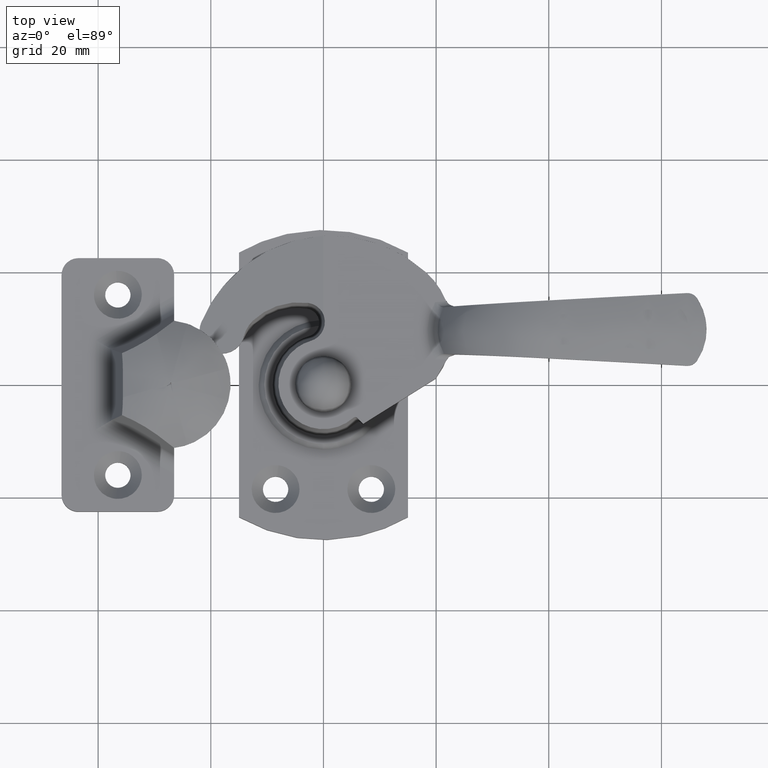
[diagram: clean part render]
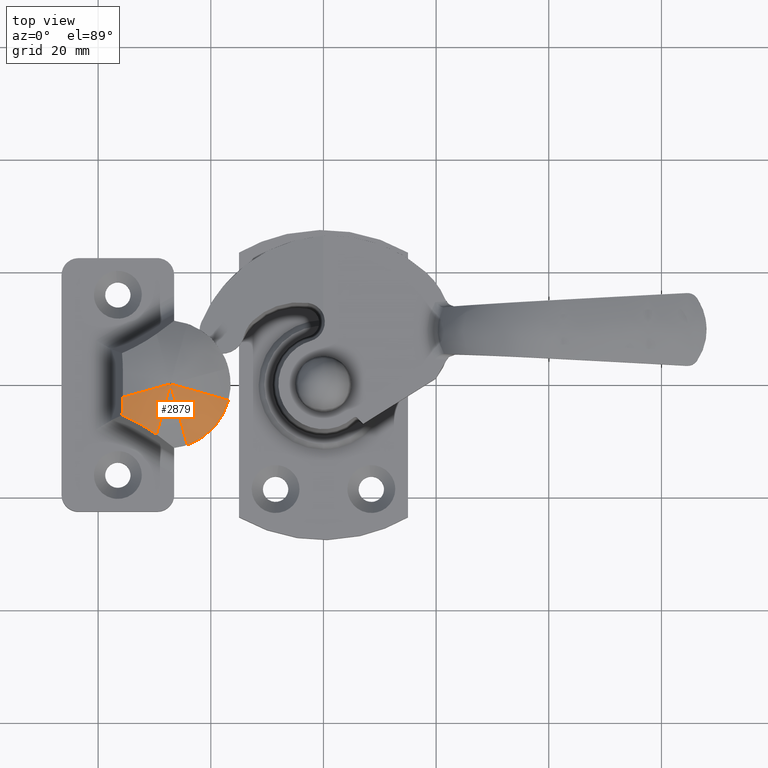
[diagram: same view with one face highlighted and labeled with its STEP entity id]
A machine part, top view. The second image highlights one B-rep face of the part: STEP entity #2879.
In plain terms, the highlighted face is a freeform B-spline surface patch.
Its self-contained STEP definition (entity closure, byte-faithful):
#2393=CARTESIAN_POINT('',(-16.865678131114400,-2.861039895896480,11.261993442719840));
#2394=VERTEX_POINT('',#2393);
#2412=CARTESIAN_POINT('',(-24.177245148327948,-10.757284593454459,10.931948783105540));
#2413=VERTEX_POINT('',#2412);
#2414=CARTESIAN_POINT('',(-16.865678131114400,-2.861039895896480,11.261993442719840));
#2415=CARTESIAN_POINT('',(-16.983304585026659,-3.313673338012677,11.344063364204009));
#2416=CARTESIAN_POINT('',(-17.127923176603950,-3.755949839157143,11.415053971642729));
#2417=CARTESIAN_POINT('',(-17.470181074875189,-4.620243388056475,11.534596392387080));
#2418=CARTESIAN_POINT('',(-17.667818673293549,-5.042259855563511,11.583158763522469));
#2419=CARTESIAN_POINT('',(-18.005158622210999,-5.659703165067700,11.638377848142939));
#2420=CARTESIAN_POINT('',(-18.124438315107000,-5.862913278894743,11.653839655628291));
#2421=CARTESIAN_POINT('',(-18.313937464525260,-6.163700885495889,11.672435723474200));
#2422=CARTESIAN_POINT('',(-18.378692407391359,-6.263002050292717,11.677847673356810));
#2423=CARTESIAN_POINT('',(-18.510801978881130,-6.458860684491440,11.687060912507720));
#2424=CARTESIAN_POINT('',(-18.578238655109139,-6.555549162315566,11.690870468515440));
#2425=CARTESIAN_POINT('',(-18.922252280941901,-7.032858092294899,11.705962417226880));
#2426=CARTESIAN_POINT('',(-19.219241508093670,-7.395148690099553,11.705425706607199));
#2427=CARTESIAN_POINT('',(-19.856042114928709,-8.081265642669104,11.679106791051710));
#2428=CARTESIAN_POINT('',(-20.195851542366398,-8.405093836288524,11.653329319455230));
#2429=CARTESIAN_POINT('',(-20.648161520774369,-8.785125949970235,11.604511735195731));
#2430=CARTESIAN_POINT('',(-20.739975216304330,-8.859852609939136,11.593914980365071));
#2431=CARTESIAN_POINT('',(-20.924955578483932,-9.005692431042682,11.571213610549600));
#2432=CARTESIAN_POINT('',(-21.018294114345359,-9.076952472959947,11.559091152045770));
#2433=CARTESIAN_POINT('',(-21.300810247663652,-9.285834981114942,11.520431917131649));
#2434=CARTESIAN_POINT('',(-21.492485922409610,-9.418564651897611,11.491605613234899));
#2435=CARTESIAN_POINT('',(-22.077245447655041,-9.797648625366321,11.396065339295379));
#2436=CARTESIAN_POINT('',(-22.480027374858121,-10.024965897628960,11.320323490414101));
#2437=CARTESIAN_POINT('',(-23.103231411708698,-10.328402603739930,11.188393704987160));
#2438=CARTESIAN_POINT('',(-23.314146710960070,-10.423274328456669,11.141355755081570));
#2439=CARTESIAN_POINT('',(-23.635321481800570,-10.556087032101960,11.066100352625581));
#2440=CARTESIAN_POINT('',(-23.743143796122752,-10.598754354630220,11.040238724301821));
#2441=CARTESIAN_POINT('',(-23.959500701526661,-10.680578140359360,10.987152981929279));
#2442=CARTESIAN_POINT('',(-24.068143183349541,-10.719780139081349,10.959903870999980));
#2443=CARTESIAN_POINT('',(-24.177245148327948,-10.757284593454459,10.931948783105540));
#2444=B_SPLINE_CURVE_WITH_KNOTS('',3,(#2414,#2415,#2416,#2417,#2418,#2419,#2420,#2421,#2422,#2423,#2424,#2425,#2426,#2427,#2428,#2429,#2430,#2431,#2432,#2433,#2434,#2435,#2436,#2437,#2438,#2439,#2440,#2441,#2442,#2443),.UNSPECIFIED.,.F.,.U.,(4,2,2,2,2,2,2,2,2,2,2,2,2,2,4),(0.0,0.125000000000002,0.250000000000003,0.312500000000004,0.343750000000004,0.375000000000004,0.500000000000004,0.625000000000004,0.656250000000004,0.687500000000003,0.750000000000002,0.875000000000001,0.937500000000000,0.968750000000000,1.0),.UNSPECIFIED.);
#2445=EDGE_CURVE('',#2394,#2413,#2444,.T.);
#2536=CARTESIAN_POINT('',(-30.024185993516113,-10.729596677095262,10.952783937540014));
#2537=CARTESIAN_POINT('',(-29.797835679884638,-9.877531489586170,11.585428212022922));
#2538=CARTESIAN_POINT('',(-29.558934069814182,-8.980222557463964,12.133148983882521));
#2539=CARTESIAN_POINT('',(-29.075138572153996,-7.163640981834149,13.044505956993852));
#2540=CARTESIAN_POINT('',(-28.828720405568596,-6.239085911053775,13.412794807364511));
#2541=CARTESIAN_POINT('',(-28.328239821971657,-4.361354180605857,13.991320772080615));
#2542=CARTESIAN_POINT('',(-28.074073887974802,-3.408173681235928,14.201347911976043));
#2543=CARTESIAN_POINT('',(-27.687379392580365,-1.958097247006881,14.399848834178274));
#2544=CARTESIAN_POINT('',(-27.557594523406962,-1.471378462731506,14.446392776159160));
#2545=CARTESIAN_POINT('',(-27.362855851297340,-0.741582587070588,14.486379463952400));
#2546=CARTESIAN_POINT('',(-27.298037098094326,-0.497688800743477,14.494759621825203));
#2547=CARTESIAN_POINT('',(-27.216410072354364,-0.194977497555821,14.499056877548126));
#2548=CARTESIAN_POINT('',(-27.200415605136957,-0.132970739615949,14.499608264158400));
#2549=CARTESIAN_POINT('',(-27.178739189822370,-0.062462266169482,14.499908155454131));
#2550=CARTESIAN_POINT('',(-27.174359805654625,-0.047079532301018,14.499950686282759));
#2551=CARTESIAN_POINT('',(-27.163504152199913,-0.033660549255883,14.499980779354285));
#2552=CARTESIAN_POINT('',(-27.157817308370767,-0.046186177491745,14.499956445506974));
#2553=CARTESIAN_POINT('',(-27.144220646083770,-0.085192704062019,14.499828191957379));
#2554=CARTESIAN_POINT('',(-27.136168160495671,-0.115654202293428,14.499663989848987));
#2555=CARTESIAN_POINT('',(-27.095125326163096,-0.264200667932157,14.498464418016402));
#2556=CARTESIAN_POINT('',(-27.062993166108615,-0.385710458427682,14.496284002075415));
#2557=CARTESIAN_POINT('',(-26.772274213621884,-1.472904191268938,14.465681320371671));
#2558=CARTESIAN_POINT('',(-26.514869255348454,-2.439697496714986,14.360403623624149));
#2559=CARTESIAN_POINT('',(-26.005811590751591,-4.349035596271551,13.993793414858555));
#2560=CARTESIAN_POINT('',(-25.753721267656939,-5.294528437970536,13.732672474026534));
#2561=CARTESIAN_POINT('',(-25.255318699915200,-7.164845935684999,13.042770027172955));
#2562=CARTESIAN_POINT('',(-25.012958661543127,-8.074442410607244,12.619657997543261));
#2563=CARTESIAN_POINT('',(-24.543553438084476,-9.837714066996666,11.608297356600007));
#2564=CARTESIAN_POINT('',(-24.316292755283307,-10.691757987905854,11.020280471670340));
#2565=CARTESIAN_POINT('',(-24.098302887228304,-11.513049753720404,10.336817359757163));
#2566=CARTESIAN_POINT('',(-30.053985499563563,-10.710253850202484,10.967005970455736));
#2567=CARTESIAN_POINT('',(-29.824709683416540,-9.858388380114043,11.597723099316209));
#2568=CARTESIAN_POINT('',(-29.583032828747264,-8.961846099956343,12.143472363982143));
#2569=CARTESIAN_POINT('',(-29.093882455526693,-7.147638910370492,13.051241388075708));
#2570=CARTESIAN_POINT('',(-28.844902416523656,-6.224694255054417,13.417924150804110));
#2571=CARTESIAN_POINT('',(-28.339364059816983,-4.350761305729182,13.993808884351363));
#2572=CARTESIAN_POINT('',(-28.082731342351906,-3.399760686724462,14.202821187499962));
#2573=CARTESIAN_POINT('',(-27.692332060387525,-1.953188808430697,14.400348185828523));
#2574=CARTESIAN_POINT('',(-27.561312782866839,-1.467677425522977,14.446660545979718));
#2575=CARTESIAN_POINT('',(-27.364726472231450,-0.739711533548965,14.486447689098714));
#2576=CARTESIAN_POINT('',(-27.299293666443369,-0.496432421999992,14.494785909137814));
#2577=CARTESIAN_POINT('',(-27.216893514596737,-0.194485154526563,14.499061654625171));
#2578=CARTESIAN_POINT('',(-27.200747563525557,-0.132634959316589,14.499610280552780));
#2579=CARTESIAN_POINT('',(-27.178865854206705,-0.062304532097870,14.499908670396801));
#2580=CARTESIAN_POINT('',(-27.174444993685157,-0.046960643439871,14.499950988192095));
#2581=CARTESIAN_POINT('',(-27.163486528438305,-0.033575546829087,14.499980930745451));
#2582=CARTESIAN_POINT('',(-27.157745825750894,-0.046069544480406,14.499956718684373));
#2583=CARTESIAN_POINT('',(-27.144020391726993,-0.084977570774255,14.499829107201730));
#2584=CARTESIAN_POINT('',(-27.135891641756992,-0.115362149343743,14.499665727283363));
#2585=CARTESIAN_POINT('',(-27.094460089825887,-0.263533554166989,14.498472161101015));
#2586=CARTESIAN_POINT('',(-27.062023584760528,-0.384736670571308,14.496302660645650));
#2587=CARTESIAN_POINT('',(-26.768551632785318,-1.469191596799880,14.465852982949967));
#2588=CARTESIAN_POINT('',(-26.508710943459587,-2.433582801624087,14.361101966155797));
#2589=CARTESIAN_POINT('',(-25.994704019925130,-4.338485190947859,13.996262185739054));
#2590=CARTESIAN_POINT('',(-25.740122367331910,-5.281952114054143,13.736370358129538));
#2591=CARTESIAN_POINT('',(-25.236552147528293,-7.148860593158601,13.049496211272082));
#2592=CARTESIAN_POINT('',(-24.991587542084531,-8.057108039402953,12.628135303321077));
#2593=CARTESIAN_POINT('',(-24.516780755764994,-9.818622896323811,11.620480730433584));
#2594=CARTESIAN_POINT('',(-24.286759645369230,-10.672246466802500,11.034398385890585));
#2595=CARTESIAN_POINT('',(-24.065802638957447,-11.493691228988453,10.352767557732362));
#2596=CARTESIAN_POINT('',(-30.105509902927718,-10.676809416142422,10.991596370022814));
#2597=CARTESIAN_POINT('',(-29.871162026220649,-9.825299068263663,11.618975099175753));
#2598=CARTESIAN_POINT('',(-29.624676983260670,-8.930090438265163,12.161311806966058));
#2599=CARTESIAN_POINT('',(-29.126258403214994,-7.119998841431166,13.062875368080183));
#2600=CARTESIAN_POINT('',(-28.872848049320453,-6.199840487805586,13.426782305000769));
#2601=CARTESIAN_POINT('',(-28.358569430024964,-4.332473303764227,13.998104470075345));
#2602=CARTESIAN_POINT('',(-28.097676312374048,-3.385237716658024,14.205364436078618));
#2603=CARTESIAN_POINT('',(-27.700880738784658,-1.944716473024068,14.401210104461326));
#2604=CARTESIAN_POINT('',(-27.567730622639715,-1.461289311929994,14.447122725615863));
#2605=CARTESIAN_POINT('',(-27.367955158592586,-0.736482100543047,14.486565445505359));
#2606=CARTESIAN_POINT('',(-27.301462490264498,-0.494263925436004,14.494831280764270));
#2607=CARTESIAN_POINT('',(-27.217727928965925,-0.193635377527037,14.499069899791566));
#2608=CARTESIAN_POINT('',(-27.201320518772224,-0.132055407508713,14.499613760819509));
#2609=CARTESIAN_POINT('',(-27.179084475017774,-0.062032285476647,14.499909559180045));
#2610=CARTESIAN_POINT('',(-27.174592026933762,-0.046755443068794,14.499951509283036));
#2611=CARTESIAN_POINT('',(-27.163456110093552,-0.033428833932048,14.499981192044290));
#2612=CARTESIAN_POINT('',(-27.157622447833596,-0.045868237672497,14.499957190184430));
#2613=CARTESIAN_POINT('',(-27.143674755722341,-0.084606253958764,14.499830686899688));
#2614=CARTESIAN_POINT('',(-27.135414374536374,-0.114858070306483,14.499668726069205));
#2615=CARTESIAN_POINT('',(-27.093311901102094,-0.262382125028508,14.498485525558044));
#2616=CARTESIAN_POINT('',(-27.060350098838903,-0.383055924266158,14.496334865116857));
#2617=CARTESIAN_POINT('',(-26.762126399155584,-1.462783599798983,14.466149275285703));
#2618=CARTESIAN_POINT('',(-26.498081010775110,-2.423028156394154,14.362307383198008));
#2619=CARTESIAN_POINT('',(-25.975527456114499,-4.320270540410975,14.000524372590087));
#2620=CARTESIAN_POINT('',(-25.716641491920775,-5.260236895326716,13.742755400583809));
#2621=CARTESIAN_POINT('',(-25.204137040203367,-7.121249416479140,13.061114220534806));
#2622=CARTESIAN_POINT('',(-24.954665756740035,-8.027160336666709,12.642781109070029));
#2623=CARTESIAN_POINT('',(-24.470504111534481,-9.785623763004661,11.641539720701935));
#2624=CARTESIAN_POINT('',(-24.235697239351193,-10.638511272117377,11.058808096555623));
#2625=CARTESIAN_POINT('',(-24.009592565781173,-11.460210128084253,10.380353863778062));
#2626=CARTESIAN_POINT('',(-34.796936183277197,-7.631609731406127,13.230613985771127));
#2627=CARTESIAN_POINT('',(-34.028927881166290,-6.863605369511594,13.521157724020638));
#2628=CARTESIAN_POINT('',(-33.295914110942334,-6.130596353753516,13.733989321612485));
#2629=CARTESIAN_POINT('',(-31.909331428405746,-4.744027301692105,14.062945427427572));
#2630=CARTESIAN_POINT('',(-31.250523482437199,-4.085227723883969,14.180453398057969));
#2631=CARTESIAN_POINT('',(-29.966557315529062,-2.801292946851612,14.357756470037394));
#2632=CARTESIAN_POINT('',(-29.341646166269676,-2.176393742738175,14.417056032523536));
#2633=CARTESIAN_POINT('',(-28.408528476943960,-1.243388301708521,14.472558533147838));
#2634=CARTESIAN_POINT('',(-28.098303481877245,-0.933173962512269,14.485331839540617));
#2635=CARTESIAN_POINT('',(-27.634579416901158,-0.469796184459643,14.496289745443317));
#2636=CARTESIAN_POINT('',(-27.480521830902287,-0.315231603337454,14.498577188310291));
#2637=CARTESIAN_POINT('',(-27.286609437917459,-0.123485672343339,14.499750544233926));
#2638=CARTESIAN_POINT('',(-27.248617664085756,-0.084213719640831,14.499901054953584));
#2639=CARTESIAN_POINT('',(-27.197131354261465,-0.039558661515064,14.499982927144117));
#2640=CARTESIAN_POINT('',(-27.186729426569023,-0.029816424632024,14.499994524649493));
#2641=CARTESIAN_POINT('',(-27.160945118186536,-0.021317889045540,14.500002761897962));
#2642=CARTESIAN_POINT('',(-27.147437766063788,-0.029250630394955,14.499996111881405));
#2643=CARTESIAN_POINT('',(-27.115142864980797,-0.053954439137003,14.499961089314828));
#2644=CARTESIAN_POINT('',(-27.096016284943982,-0.073246683199500,14.499916273832342));
#2645=CARTESIAN_POINT('',(-26.998526533040607,-0.167329253991431,14.499588789292135));
#2646=CARTESIAN_POINT('',(-26.922191988418316,-0.244298417785412,14.498993572210253));
#2647=CARTESIAN_POINT('',(-26.231226737294406,-0.933308153920530,14.490631108930868));
#2648=CARTESIAN_POINT('',(-25.617175706471812,-1.548361943157570,14.462200609044247));
#2649=CARTESIAN_POINT('',(-24.370093920210611,-2.795366959901632,14.357348346609863));
#2650=CARTESIAN_POINT('',(-23.736476574711009,-3.428971512724772,14.281212201767749));
#2651=CARTESIAN_POINT('',(-22.417679409322833,-4.747745815679557,14.059818011369009));
#2652=CARTESIAN_POINT('',(-21.743153922608752,-5.422264586228102,13.916695088154773));
#2653=CARTESIAN_POINT('',(-20.331348964697636,-6.834058566558255,13.525134121416993));
#2654=CARTESIAN_POINT('',(-19.593701169541358,-7.571702373857972,13.277853179005145));
#2655=CARTESIAN_POINT('',(-18.805166578331910,-8.360233526243395,12.934538193547118));
#2656=CARTESIAN_POINT('',(-37.842013405310574,-2.940324724451767,10.991703834913125));
#2657=CARTESIAN_POINT('',(-36.990497540288573,-2.705962398958429,11.619071890581061));
#2658=CARTESIAN_POINT('',(-36.095285248885673,-2.459464150320830,12.161397640653927));
#2659=CARTESIAN_POINT('',(-34.285184382688115,-1.961022065124428,13.062941333108791));
#2660=CARTESIAN_POINT('',(-33.365021262308318,-1.707601296061618,13.426839386237221));
#2661=CARTESIAN_POINT('',(-31.497624712541825,-1.193308579843572,13.998146953820020));
#2662=CARTESIAN_POINT('',(-30.550381848763845,-0.932407152965912,14.205401314824375));
#2663=CARTESIAN_POINT('',(-29.109703045190876,-0.535639848843033,14.401241606100623));
#2664=CARTESIAN_POINT('',(-28.626265538672957,-0.402487602691896,14.447152948793221));
#2665=CARTESIAN_POINT('',(-27.900924967906153,-0.202851628811148,14.486594567488414));
#2666=CARTESIAN_POINT('',(-27.659505048456481,-0.136136635939599,14.494860167316606));
#2667=CARTESIAN_POINT('',(-27.355483322013072,-0.053333575702781,14.499098672493364));
#2668=CARTESIAN_POINT('',(-27.295911613632374,-0.036372417923505,14.499642474430189));
#2669=CARTESIAN_POINT('',(-27.215177409817077,-0.017085738666127,14.499938318104252));
#2670=CARTESIAN_POINT('',(-27.198866314485887,-0.012877992031852,14.499980176397754));
#2671=CARTESIAN_POINT('',(-27.158434238639725,-0.009207404131631,14.500010018156056));
#2672=CARTESIAN_POINT('',(-27.137253488433178,-0.012633626459757,14.499985963685125));
#2673=CARTESIAN_POINT('',(-27.086612472511675,-0.023303354583079,14.499859384051394));
#2674=CARTESIAN_POINT('',(-27.056620837409671,-0.031635703377522,14.499697483744749));
#2675=CARTESIAN_POINT('',(-26.903755992413277,-0.072268701444623,14.498514302759114));
#2676=CARTESIAN_POINT('',(-26.784078950756768,-0.105506261415533,14.496363713705470));
#2677=CARTESIAN_POINT('',(-25.701299298456657,-0.402900362207315,14.466178966156146));
#2678=CARTESIAN_POINT('',(-24.742639817770716,-0.667392138449565,14.362339983336966));
#2679=CARTESIAN_POINT('',(-22.845300374155617,-1.189939551451098,14.000566749489773));
#2680=CARTESIAN_POINT('',(-21.905324575782036,-1.448833603655943,13.742804568645479));
#2681=CARTESIAN_POINT('',(-20.044293934430254,-1.961356467247313,13.061180134463729));
#2682=CARTESIAN_POINT('',(-19.138379416458040,-2.210839132922521,12.642856715793402));
#2683=CARTESIAN_POINT('',(-17.379907535351862,-2.695025733561585,11.641635867943444));
#2684=CARTESIAN_POINT('',(-16.527015691459265,-2.929846091704202,11.058915003748576));
#2685=CARTESIAN_POINT('',(-15.705310211207228,-3.155965690728471,10.380470934699881));
#2686=CARTESIAN_POINT('',(-37.856837476149877,-2.917486570868238,10.980804353468441));
#2687=CARTESIAN_POINT('',(-37.005162635265449,-2.685374590444354,11.609653145586957));
#2688=CARTESIAN_POINT('',(-36.109357909344787,-2.441009077930028,12.153492097702872));
#2689=CARTESIAN_POINT('',(-34.297431156213975,-1.946676549846593,13.057786627029014));
#2690=CARTESIAN_POINT('',(-33.376032696300278,-1.695219596389581,13.422914874693333));
#2691=CARTESIAN_POINT('',(-31.505726178162085,-1.184800116994300,13.996244121757872));
#2692=CARTESIAN_POINT('',(-30.556815077408107,-0.925786309155078,14.204274829346780));
#2693=CARTESIAN_POINT('',(-29.113455404685279,-0.531852308982038,14.400859951145597));
#2694=CARTESIAN_POINT('',(-28.629094579460649,-0.399643963952948,14.446948370381268));
#2695=CARTESIAN_POINT('',(-27.902353733760506,-0.201419649697263,14.486542559338993));
#2696=CARTESIAN_POINT('',(-27.660465395806462,-0.135175688987771,14.494840223372641));
#2697=CARTESIAN_POINT('',(-27.355852913608274,-0.052957124953075,14.499095174413947));
#2698=CARTESIAN_POINT('',(-27.296165406667658,-0.036115687637903,14.499641086812186));
#2699=CARTESIAN_POINT('',(-27.215274250980642,-0.016965141453597,14.499938078717248));
#2700=CARTESIAN_POINT('',(-27.198931445157886,-0.012787094636641,14.499980099400160));
#2701=CARTESIAN_POINT('',(-27.158420764394133,-0.009142415093041,14.500010057095627));
#2702=CARTESIAN_POINT('',(-27.137198836123879,-0.012544453945869,14.499985909226424));
#2703=CARTESIAN_POINT('',(-27.086459369231093,-0.023138870985335,14.499858838268173));
#2704=CARTESIAN_POINT('',(-27.056409429699464,-0.031412406460886,14.499696309651943));
#2705=CARTESIAN_POINT('',(-26.903247442280769,-0.071758595073217,14.498508536935015));
#2706=CARTESIAN_POINT('',(-26.783337864141494,-0.104761530786661,14.496349602416853));
#2707=CARTESIAN_POINT('',(-25.698458215092817,-0.400056703542668,14.466047871649696));
#2708=CARTESIAN_POINT('',(-24.737964850516949,-0.662682777699743,14.361806162871561));
#2709=CARTESIAN_POINT('',(-22.837231394457199,-1.181443869396583,13.998678714567683));
#2710=CARTESIAN_POINT('',(-21.895704303872314,-1.438430608647806,13.739975951560744));
#2711=CARTESIAN_POINT('',(-20.032059960243632,-1.946993602165673,13.056032504575080));
#2712=CARTESIAN_POINT('',(-19.125109125600243,-2.194478196598513,12.636367015565177));
#2713=CARTESIAN_POINT('',(-17.365282471242207,-2.674515883719172,11.632302705362756));
#2714=CARTESIAN_POINT('',(-16.512062887599310,-2.907212937104808,11.048095717731444));
#2715=CARTESIAN_POINT('',(-15.690468364753729,-3.131048102630891,10.368242279691939));
#2723=(BOUNDED_SURFACE()B_SPLINE_SURFACE(3,2,((#2536,#2566,#2596,#2626,#2656,#2686),(#2537,#2567,#2597,#2627,#2657,#2687),(#2538,#2568,#2598,#2628,#2658,#2688),(#2539,#2569,#2599,#2629,#2659,#2689),(#2540,#2570,#2600,#2630,#2660,#2690),(#2541,#2571,#2601,#2631,#2661,#2691),(#2542,#2572,#2602,#2632,#2662,#2692),(#2543,#2573,#2603,#2633,#2663,#2693),(#2544,#2574,#2604,#2634,#2664,#2694),(#2545,#2575,#2605,#2635,#2665,#2695),(#2546,#2576,#2606,#2636,#2666,#2696),(#2547,#2577,#2607,#2637,#2667,#2697),(#2548,#2578,#2608,#2638,#2668,#2698),(#2549,#2579,#2609,#2639,#2669,#2699),(#2550,#2580,#2610,#2640,#2670,#2700),(#2551,#2581,#2611,#2641,#2671,#2701),(#2552,#2582,#2612,#2642,#2672,#2702),(#2553,#2583,#2613,#2643,#2673,#2703),(#2554,#2584,#2614,#2644,#2674,#2704),(#2555,#2585,#2615,#2645,#2675,#2705),(#2556,#2586,#2616,#2646,#2676,#2706),(#2557,#2587,#2617,#2647,#2677,#2707),(#2558,#2588,#2618,#2648,#2678,#2708),(#2559,#2589,#2619,#2649,#2679,#2709),(#2560,#2590,#2620,#2650,#2680,#2710),(#2561,#2591,#2621,#2651,#2681,#2711),(#2562,#2592,#2622,#2652,#2682,#2712),(#2563,#2593,#2623,#2653,#2683,#2713),(#2564,#2594,#2624,#2654,#2684,#2714),(#2565,#2595,#2625,#2655,#2685,#2715)),.UNSPECIFIED.,.F.,.F.,.U.)B_SPLINE_SURFACE_WITH_KNOTS((4,2,2,2,2,2,2,2,2,2,2,2,2,2,4),(3,1,1,1,3),(0.0,3.891344884554369,7.782689769108739,11.674034653663110,13.619707095940310,14.592543317078890,14.835752372363549,14.896554636184700,14.957356900005861,15.078961427648190,15.565379538217480,19.456724422771849,23.348069307326220,27.239414191880559,31.130759076434931),(0.0,0.087119335404719,0.150366648341030,12.499672836062320,12.564359782576570),.UNSPECIFIED.)GEOMETRIC_REPRESENTATION_ITEM()RATIONAL_B_SPLINE_SURFACE(((1.002239282368243,1.001590585353788,1.000470944169667,0.908046152816130,1.000467363349325,1.000934726698650),(1.001863220898850,1.001323465014780,1.000391854565355,0.923488733608445,1.000388875102206,1.000777750204412),(1.001524642213377,1.001082969083648,1.000320647976959,0.937392122098060,1.000318209932553,1.000636419865106),(1.000950956875074,1.000675474472995,1.000199996035458,0.960949925561376,1.000198475367154,1.000396950734308),(1.000713198660733,1.000506592361996,1.000149993031629,0.970713224204833,1.000148852560776,1.000297705121553),(1.000336703424745,1.000239163914102,1.000070812201730,0.986173617180076,1.000070273781703,1.000140547563406),(1.000197922381816,1.000140586308439,1.000041625117531,0.991872519200844,1.000041308621273,1.000082617242545),(1.000066524306431,1.000047252900742,1.000013990747527,0.997268247187445,1.000013884368986,1.000027768737972),(1.000035611796598,1.000025295426291,1.000007489527992,0.998537637884024,1.000007432581424,1.000014865162848),(1.000009048295481,1.000006427097571,1.000001902949830,0.999628440972123,1.000001888480766,1.000003776961532),(1.000003477384094,1.000002470021774,1.000000731329728,0.999857204767900,1.000000725769068,1.000001451538136),(1.000000620867082,1.000000441008290,1.000000130574749,0.999974504726326,1.000000129581925,1.000000259163849),(1.000000254342897,1.000000180662382,1.000000053490934,0.999989555668287,1.000000053084216,1.000000106168431),(1.000000054969433,1.000000039045355,1.000000011560638,0.999997742736293,1.000000011472737,1.000000022945474),(1.000000026730444,1.000000018986910,1.000000005621688,0.999998902341537,1.000000005578944,1.000000011157887),(1.000000006665672,1.000000004734695,1.000000001401859,0.999999726281011,1.000000001391200,1.000000002782401),(1.000000022863378,1.000000016240093,1.000000004808404,0.999999061138719,1.000000004771843,1.000000009543687),(1.000000108146558,1.000000076817615,1.000000022744336,0.999995559071840,1.000000022571400,1.000000045142800),(1.000000217283281,1.000000154338555,1.000000045696914,0.999991077483643,1.000000045349458,1.000000090698916),(1.000001014703513,1.000000720754367,1.000000213402611,0.999958332234859,1.000000211780006,1.000000423560011),(1.000002464149108,1.000001750310518,1.000000518235964,0.999898812229405,1.000000514295561,1.000001028591121),(1.000022804137285,1.000016198013831,1.000004795945188,0.999063571354449,1.000004759479256,1.000009518958512),(1.000092927774460,1.000066007556310,1.000019543669080,0.996184015694938,1.000019395068944,1.000038790137888),(1.000334607430410,1.000237675107716,1.000070371392511,0.986259687050242,1.000069836324174,1.000139672648348),(1.000506129320009,1.000359508874336,1.000106444214332,0.979216315544926,1.000105634866574,1.000211269733148),(1.000951108870001,1.000675582436559,1.000200028001558,0.960943684044714,1.000198507090200,1.000397014180400),(1.001221038030253,1.000867315902131,1.000256796887004,0.949859318310254,1.000254844333866,1.000509688667731),(1.001847794327719,1.001312507362253,1.000388610198394,0.924122210022313,1.000385655403764,1.000771310807528),(1.002204744240833,1.001566052565791,1.000463680445375,0.909464425801675,1.000460154854704,1.000920309709408),(1.002600632833229,1.001847256314691,1.000546939898077,0.893207664419882,1.000542781244804,1.001085562489607)))REPRESENTATION_ITEM('')SURFACE());
#2724=CARTESIAN_POINT('',(-35.607540000000000,-2.345069335652475,12.397474000000001));
#2725=VERTEX_POINT('',#2724);
#2726=CARTESIAN_POINT('',(-16.865678131114400,-2.861039895896480,11.261993442719840));
#2727=CARTESIAN_POINT('',(-17.548483461811529,-2.671373302434865,11.738398010021349));
#2728=CARTESIAN_POINT('',(-18.257208718119930,-2.474506995718978,12.162795204696179));
#2729=CARTESIAN_POINT('',(-19.357939462922999,-2.168752116404279,12.723862270577280));
#2730=CARTESIAN_POINT('',(-19.731146868168210,-2.065084771795775,12.898249661867560));
#2731=CARTESIAN_POINT('',(-20.300453135506640,-1.906946603830222,13.140779215345880));
#2732=CARTESIAN_POINT('',(-20.491805807978871,-1.853793970743979,13.218444355501200));
#2733=CARTESIAN_POINT('',(-20.877704286167919,-1.746601899061670,13.367367806066611));
#2734=CARTESIAN_POINT('',(-21.072468734243149,-1.692501727712386,13.438693356275660));
#2735=CARTESIAN_POINT('',(-22.048836031308038,-1.421294472270122,13.777286004575600));
#2736=CARTESIAN_POINT('',(-22.841509823342300,-1.201112946448179,13.992179327204420));
#2737=CARTESIAN_POINT('',(-24.047459336395910,-0.866146620765492,14.232644460818980));
#2738=CARTESIAN_POINT('',(-24.452275770814591,-0.753705758278299,14.299104409939650));
#2739=CARTESIAN_POINT('',(-25.063788706190799,-0.583864019619019,14.378076513474960));
#2740=CARTESIAN_POINT('',(-25.268341681921768,-0.527053168525311,14.400944564320900));
#2741=CARTESIAN_POINT('',(-25.678893626395119,-0.413039480278958,14.439702244454219));
#2742=CARTESIAN_POINT('',(-25.884718883048389,-0.355883554081936,14.455569469651950));
#2743=CARTESIAN_POINT('',(-26.296436381749260,-0.241588212994451,14.480197232309360));
#2744=CARTESIAN_POINT('',(-26.502471235075550,-0.184374962232650,14.488972810514730));
#2745=CARTESIAN_POINT('',(-26.811862458438181,-0.098725343512133,14.496824127700000));
#2746=CARTESIAN_POINT('',(-26.914972520290998,-0.069976149141480,14.498555211072590));
#2747=CARTESIAN_POINT('',(-27.044185081360251,-0.035211901179434,14.499610643214380));
#2748=CARTESIAN_POINT('',(-27.070037779394731,-0.028271043973465,14.499766343741820));
#2749=CARTESIAN_POINT('',(-27.109029074411740,-0.018759133267483,14.499916532877659));
#2750=CARTESIAN_POINT('',(-27.122058680678009,-0.015699957209514,14.499952745322600));
#2751=CARTESIAN_POINT('',(-27.148461001881220,-0.011127780354445,14.499996903499390));
#2752=CARTESIAN_POINT('',(-27.161899662795982,-0.009901830586691,14.500004621502720));
#2753=CARTESIAN_POINT('',(-27.188611654428168,-0.011782089764576,14.499989943767710));
#2754=CARTESIAN_POINT('',(-27.201803245965230,-0.014408202229347,14.499967870074871));
#2755=CARTESIAN_POINT('',(-27.227961854403048,-0.020186366736796,14.499895908124451));
#2756=CARTESIAN_POINT('',(-27.240960781737751,-0.023429708409223,14.499845935869759));
#2757=CARTESIAN_POINT('',(-27.279895324778089,-0.033378632004008,14.499654345396561));
#2758=CARTESIAN_POINT('',(-27.305762420524299,-0.040353565944106,14.499471026784359));
#2759=CARTESIAN_POINT('',(-27.435051117896730,-0.075375267479849,14.498276814006410));
#2760=CARTESIAN_POINT('',(-27.538280852430791,-0.104092538042740,14.496432982303640));
#2761=CARTESIAN_POINT('',(-27.744764319549422,-0.161269517355953,14.490968921879841));
#2762=CARTESIAN_POINT('',(-27.847967238894000,-0.189896388600598,14.487348798387050));
#2763=CARTESIAN_POINT('',(-28.157451699414601,-0.275765123522331,14.473825814955269));
#2764=CARTESIAN_POINT('',(-28.363634510589151,-0.333013925074418,14.461258019634050));
#2765=CARTESIAN_POINT('',(-28.775362576174089,-0.447341379796493,14.429042006548750));
#2766=CARTESIAN_POINT('',(-28.981052245666280,-0.504464926267337,14.409380850073401));
#2767=CARTESIAN_POINT('',(-29.391442811187350,-0.618442287520045,14.363012629049740));
#2768=CARTESIAN_POINT('',(-29.595646589501019,-0.675158455481904,14.336365560087760));
#2769=CARTESIAN_POINT('',(-30.205330291061330,-0.844497446553341,14.246194832091190));
#2770=CARTESIAN_POINT('',(-30.607886068922291,-0.956311685862305,14.172453807495231));
#2771=CARTESIAN_POINT('',(-31.804088520569490,-1.288573715539330,13.911161467627860));
#2772=CARTESIAN_POINT('',(-32.586322060357247,-1.505855676259586,13.683722195752850));
#2773=CARTESIAN_POINT('',(-34.120268138312731,-1.931943362399361,13.122166112987040));
#2774=CARTESIAN_POINT('',(-34.871989342738587,-2.140752011798825,12.788079968555330));
#2775=CARTESIAN_POINT('',(-35.607540000000000,-2.345069335652475,12.397474000000001));
#2776=B_SPLINE_CURVE_WITH_KNOTS('',3,(#2726,#2727,#2728,#2729,#2730,#2731,#2732,#2733,#2734,#2735,#2736,#2737,#2738,#2739,#2740,#2741,#2742,#2743,#2744,#2745,#2746,#2747,#2748,#2749,#2750,#2751,#2752,#2753,#2754,#2755,#2756,#2757,#2758,#2759,#2760,#2761,#2762,#2763,#2764,#2765,#2766,#2767,#2768,#2769,#2770,#2771,#2772,#2773,#2774,#2775),.UNSPECIFIED.,.F.,.U.,(4,2,2,2,2,2,2,2,2,2,2,2,2,2,2,2,2,2,2,2,2,2,2,2,4),(0.0,0.125000000000002,0.187500000000003,0.218750000000003,0.250000000000004,0.375000000000006,0.437500000000007,0.468750000000008,0.500000000000009,0.531250000000010,0.546875000000010,0.550781250000010,0.552734375000010,0.554687500000010,0.556640625000010,0.558593750000009,0.562500000000009,0.578125000000009,0.593750000000009,0.625000000000008,0.656250000000007,0.687500000000007,0.750000000000005,0.875000000000003,1.0),.UNSPECIFIED.);
#2777=EDGE_CURVE('',#2394,#2725,#2776,.T.);
#2778=ORIENTED_EDGE('',*,*,#2777,.T.);
#2779=CARTESIAN_POINT('',(-35.765312976113648,-5.500599312462621,11.963996323787040));
#2780=VERTEX_POINT('',#2779);
#2781=CARTESIAN_POINT('',(-35.607540000000000,-2.345069335652475,12.397474000000001));
#2782=CARTESIAN_POINT('',(-35.607540037944709,-2.886414302589202,12.397474032962259));
#2783=CARTESIAN_POINT('',(-35.621628918430282,-3.419495585367804,12.358765015915020));
#2784=CARTESIAN_POINT('',(-35.674892445436512,-4.470944443745631,12.212424682593531));
#2785=CARTESIAN_POINT('',(-35.714093807675283,-4.989296327308655,12.104719828275410));
#2786=CARTESIAN_POINT('',(-35.765312976113677,-5.500599312462635,11.963996323787130));
#2787=B_SPLINE_CURVE_WITH_KNOTS('',3,(#2781,#2782,#2783,#2784,#2785,#2786),.UNSPECIFIED.,.F.,.U.,(4,2,4),(0.0,0.500000000000000,1.0),.UNSPECIFIED.);
#2788=EDGE_CURVE('',#2725,#2780,#2787,.T.);
#2789=ORIENTED_EDGE('',*,*,#2788,.T.);
#2790=CARTESIAN_POINT('',(-29.642340583943351,-8.917181539820859,12.135991090361200));
#2791=VERTEX_POINT('',#2790);
#2792=CARTESIAN_POINT('',(-35.765312976113648,-5.500599312462621,11.963996323787040));
#2793=CARTESIAN_POINT('',(-35.636117455957063,-5.555110589664799,12.015923494508600));
#2794=CARTESIAN_POINT('',(-35.506092531561293,-5.611040283431256,12.065248435576249));
#2795=CARTESIAN_POINT('',(-35.244334766099762,-5.725820487112017,12.158539783000650));
#2796=CARTESIAN_POINT('',(-35.112971309470574,-5.784513050896144,12.202363472301551));
#2797=CARTESIAN_POINT('',(-34.719547643471493,-5.963553743407746,12.324652925868490));
#2798=CARTESIAN_POINT('',(-34.457303086286103,-6.087231383874844,12.394258729374730));
#2799=CARTESIAN_POINT('',(-33.670683429910348,-6.471256263863924,12.567203030364340));
#2800=CARTESIAN_POINT('',(-33.146421484318992,-6.744497285316154,12.634939501540210));
#2801=CARTESIAN_POINT('',(-32.491295870232932,-7.109045586139283,12.656111214993910));
#2802=CARTESIAN_POINT('',(-32.359977913961743,-7.183290259299740,12.657134801299360));
#2803=CARTESIAN_POINT('',(-32.099669522245840,-7.332827251925073,12.652669942591769));
#2804=CARTESIAN_POINT('',(-31.970514169570489,-7.408205548490747,12.647202740635169));
#2805=CARTESIAN_POINT('',(-31.586014764981350,-7.636151599387012,12.621193571308851));
#2806=CARTESIAN_POINT('',(-31.333632179897780,-7.790527348459713,12.591060837407090));
#2807=CARTESIAN_POINT('',(-30.588287330014531,-8.260860346094653,12.462438702674410));
#2808=CARTESIAN_POINT('',(-30.107036127485891,-8.583967274272830,12.326022804410259));
#2809=CARTESIAN_POINT('',(-29.642340583943351,-8.917181539820859,12.135991090361200));
#2810=B_SPLINE_CURVE_WITH_KNOTS('',3,(#2792,#2793,#2794,#2795,#2796,#2797,#2798,#2799,#2800,#2801,#2802,#2803,#2804,#2805,#2806,#2807,#2808,#2809),.UNSPECIFIED.,.F.,.U.,(4,2,2,2,2,2,2,2,4),(0.0,0.062500000000001,0.125000000000003,0.250000000000003,0.500000000000007,0.562500000000007,0.625000000000008,0.750000000000005,1.0),.UNSPECIFIED.);
#2811=EDGE_CURVE('',#2780,#2791,#2810,.T.);
#2812=ORIENTED_EDGE('',*,*,#2811,.T.);
#2813=CARTESIAN_POINT('',(-29.642340583943351,-8.917181539820859,12.135991090361200));
#2814=CARTESIAN_POINT('',(-29.434159168209639,-8.167736177203475,12.563398922417161));
#2815=CARTESIAN_POINT('',(-29.218075541187751,-7.389844468044026,12.935993498670831));
#2816=CARTESIAN_POINT('',(-28.937952981007950,-6.381421072683304,13.332254543732430));
#2817=CARTESIAN_POINT('',(-28.881387530609150,-6.177789348547195,13.408063065173019));
#2818=CARTESIAN_POINT('',(-28.767397975873280,-5.767435643880465,13.552400626305220));
#2819=CARTESIAN_POINT('',(-28.710142179957462,-5.561319558508254,13.620722275195011));
#2820=CARTESIAN_POINT('',(-28.537598439465508,-4.940178269441116,13.814246699789861));
#2821=CARTESIAN_POINT('',(-28.421535201386501,-4.522363625416928,13.928023733178280));
#2822=CARTESIAN_POINT('',(-28.245896893995951,-3.890093243570611,14.075961179248010));
#2823=CARTESIAN_POINT('',(-28.187093289542759,-3.678410808458435,14.121481927015621));
#2824=CARTESIAN_POINT('',(-28.068969042672489,-3.253189236548337,14.204917198527189));
#2825=CARTESIAN_POINT('',(-28.009596065611561,-3.039461648170103,14.242857637443100));
#2826=CARTESIAN_POINT('',(-27.831282748414878,-2.397591742279004,14.344878314705300));
#2827=CARTESIAN_POINT('',(-27.712046905178688,-1.968386449922695,14.397277021353361));
#2828=CARTESIAN_POINT('',(-27.532625709838740,-1.322665553489843,14.452649382629049));
#2829=CARTESIAN_POINT('',(-27.472726259211370,-1.107105479415282,14.467232073633500));
#2830=CARTESIAN_POINT('',(-27.352688945832931,-0.675359597731472,14.488635323864321));
#2831=CARTESIAN_POINT('',(-27.292812858079500,-0.459100878880989,14.495455916977010));
#2832=CARTESIAN_POINT('',(-27.224373786494070,-0.215718725400866,14.498738645566480));
#2833=CARTESIAN_POINT('',(-27.216746875599188,-0.188677111252583,14.499042394956540));
#2834=CARTESIAN_POINT('',(-27.201308012474371,-0.134634533850251,14.499527764381121));
#2835=CARTESIAN_POINT('',(-27.193624605722508,-0.107584108413262,14.499709468112661));
#2836=CARTESIAN_POINT('',(-27.183090367208312,-0.074060122684095,14.499859889739071));
#2837=CARTESIAN_POINT('',(-27.180933366442702,-0.067373633319389,14.499886126891051));
#2838=CARTESIAN_POINT('',(-27.177414017182301,-0.057447572608633,14.499919630988609));
#2839=CARTESIAN_POINT('',(-27.176195178212339,-0.054155585400110,14.499929825102260));
#2840=CARTESIAN_POINT('',(-27.173506639793260,-0.047663247289290,14.499948187461481));
#2841=CARTESIAN_POINT('',(-27.172102232627289,-0.044396888535895,14.499956490613300));
#2842=CARTESIAN_POINT('',(-27.169111489262619,-0.039960155252128,14.499966704756190));
#2843=CARTESIAN_POINT('',(-27.167950798111519,-0.038392586419318,14.499970062943230));
#2844=CARTESIAN_POINT('',(-27.164502727687161,-0.037376084287136,14.499972202365059));
#2845=CARTESIAN_POINT('',(-27.162807501546929,-0.038672275987486,14.499969508035960));
#2846=CARTESIAN_POINT('',(-27.159406313914751,-0.042737175346675,14.499960468751830));
#2847=CARTESIAN_POINT('',(-27.157973642037209,-0.046030168279934,14.499952434686181));
#2848=CARTESIAN_POINT('',(-27.153783546596159,-0.055718098260689,14.499925922232650));
#2849=CARTESIAN_POINT('',(-27.151509627963190,-0.062406159505318,14.499904058481370));
#2850=CARTESIAN_POINT('',(-27.140428270581101,-0.095814560180116,14.499775828968589));
#2851=CARTESIAN_POINT('',(-27.132805825931371,-0.122942677874070,14.499611493100909));
#2852=CARTESIAN_POINT('',(-27.093958529835280,-0.258290598082283,14.498483462389650));
#2853=CARTESIAN_POINT('',(-27.063968163204589,-0.366873942709052,14.496598930381101));
#2854=CARTESIAN_POINT('',(-26.973291139748909,-0.692279437398956,14.488002652312270));
#2855=CARTESIAN_POINT('',(-26.913043777505401,-0.909110700210515,14.478349368931180));
#2856=CARTESIAN_POINT('',(-26.732378773217299,-1.559138105722867,14.437614503794890));
#2857=CARTESIAN_POINT('',(-26.612572621350850,-1.990397262621026,14.394859331804930));
#2858=CARTESIAN_POINT('',(-26.374304468925789,-2.848057180801891,14.278533108888400));
#2859=CARTESIAN_POINT('',(-26.255819778367140,-3.274573988191857,14.204954837940731));
#2860=CARTESIAN_POINT('',(-26.079063986801319,-3.910860960542309,14.071355124013481));
#2861=CARTESIAN_POINT('',(-26.020307552884631,-4.122374718404222,14.022946083450069));
#2862=CARTESIAN_POINT('',(-25.903121315428230,-4.544228673389501,13.918312094586931));
#2863=CARTESIAN_POINT('',(-25.844686100808438,-4.754588369228324,13.862065408879790));
#2864=CARTESIAN_POINT('',(-25.670940674305459,-5.380053074367933,13.682653530990059));
#2865=CARTESIAN_POINT('',(-25.556826738868580,-5.790853765907171,13.548525392873120));
#2866=CARTESIAN_POINT('',(-25.219536814377690,-7.005073478511955,13.103392189659290));
#2867=CARTESIAN_POINT('',(-25.001386946089820,-7.790402772053890,12.749856143806220));
#2868=CARTESIAN_POINT('',(-24.684317658453509,-8.931839563116945,12.133603122601500));
#2869=CARTESIAN_POINT('',(-24.580326871342709,-9.306202721194332,11.913806735907810));
#2870=CARTESIAN_POINT('',(-24.375840314957252,-10.042347675712341,11.444634154712510));
#2871=CARTESIAN_POINT('',(-24.275168186698291,-10.404764363620210,11.194710478331020));
#2872=CARTESIAN_POINT('',(-24.177245148327948,-10.757284593454459,10.931948783105540));
#2873=B_SPLINE_CURVE_WITH_KNOTS('',3,(#2813,#2814,#2815,#2816,#2817,#2818,#2819,#2820,#2821,#2822,#2823,#2824,#2825,#2826,#2827,#2828,#2829,#2830,#2831,#2832,#2833,#2834,#2835,#2836,#2837,#2838,#2839,#2840,#2841,#2842,#2843,#2844,#2845,#2846,#2847,#2848,#2849,#2850,#2851,#2852,#2853,#2854,#2855,#2856,#2857,#2858,#2859,#2860,#2861,#2862,#2863,#2864,#2865,#2866,#2867,#2868,#2869,#2870,#2871,#2872),.UNSPECIFIED.,.F.,.U.,(4,2,2,2,2,2,2,2,2,2,2,2,2,2,2,2,2,2,2,2,2,2,2,2,2,2,2,2,2,4),(0.0,0.124999999999969,0.156249999999961,0.187499999999954,0.249999999999938,0.281249999999930,0.312499999999923,0.374999999999908,0.406249999999900,0.437499999999892,0.441406249999892,0.445312499999891,0.446289062499890,0.446777343749890,0.447265624999890,0.447509765624890,0.447753906249890,0.448242187499890,0.449218749999891,0.453124999999891,0.468749999999895,0.499999999999901,0.562499999999914,0.624999999999926,0.656249999999933,0.687499999999939,0.749999999999951,0.874999999999976,0.937499999999988,1.0),.UNSPECIFIED.);
#2874=EDGE_CURVE('',#2791,#2413,#2873,.T.);
#2875=ORIENTED_EDGE('',*,*,#2874,.T.);
#2876=ORIENTED_EDGE('',*,*,#2445,.F.);
#2877=EDGE_LOOP('',(#2778,#2789,#2812,#2875,#2876));
#2878=FACE_OUTER_BOUND('',#2877,.T.);
#2879=ADVANCED_FACE('',(#2878),#2723,.T.);